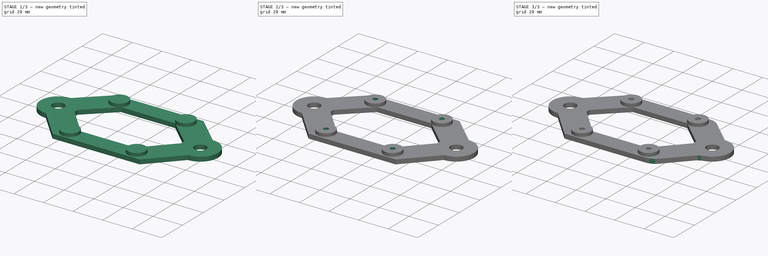
[diagram: build sequence overview — one tinted view per stage of 3, left to right]
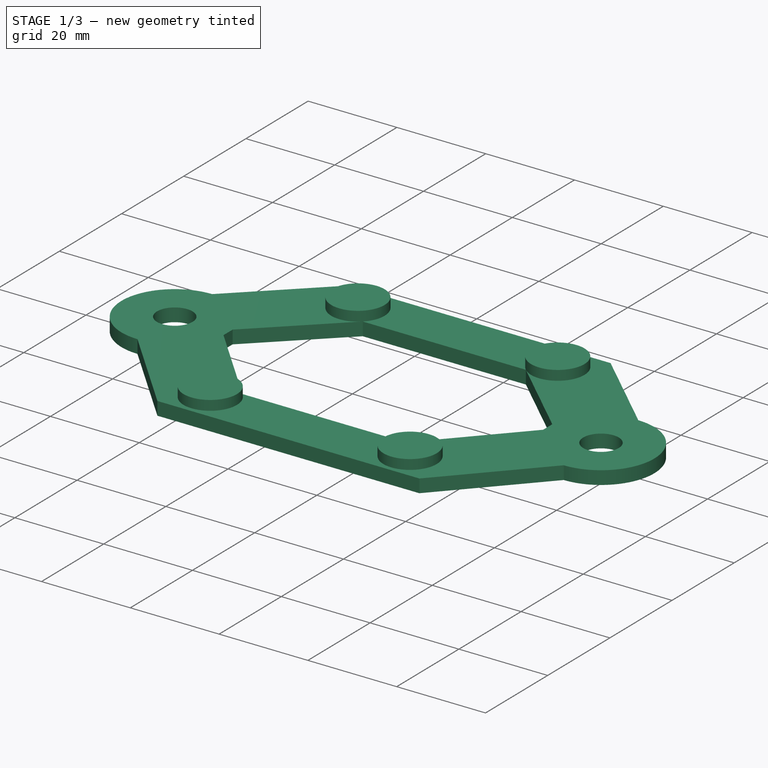
[diagram: stage 1 of 3 — iso view after this stage's code; geometry added in this stage tinted green]
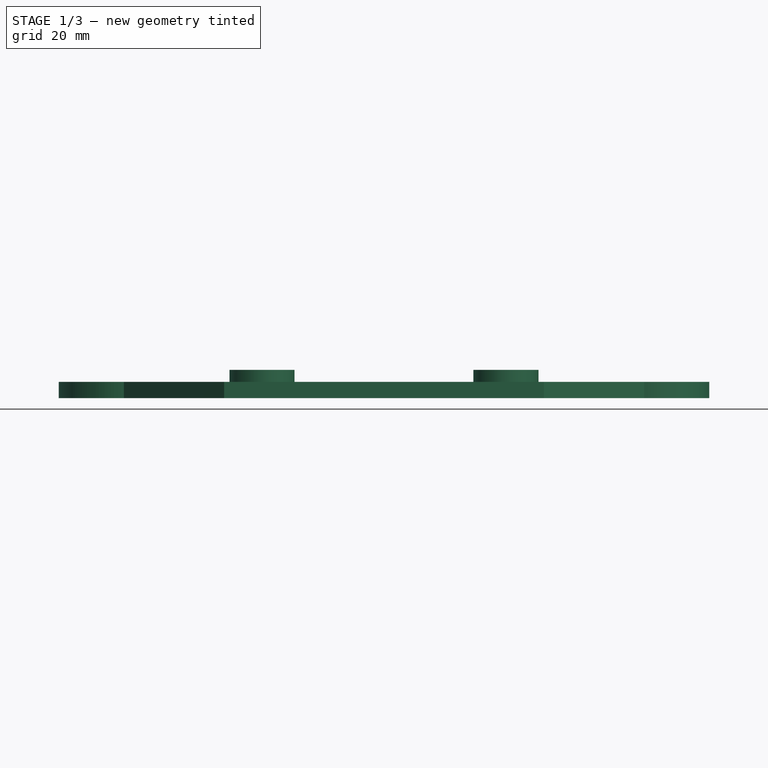
[diagram: stage 1 of 3 — front view after this stage's code; geometry added in this stage tinted green]
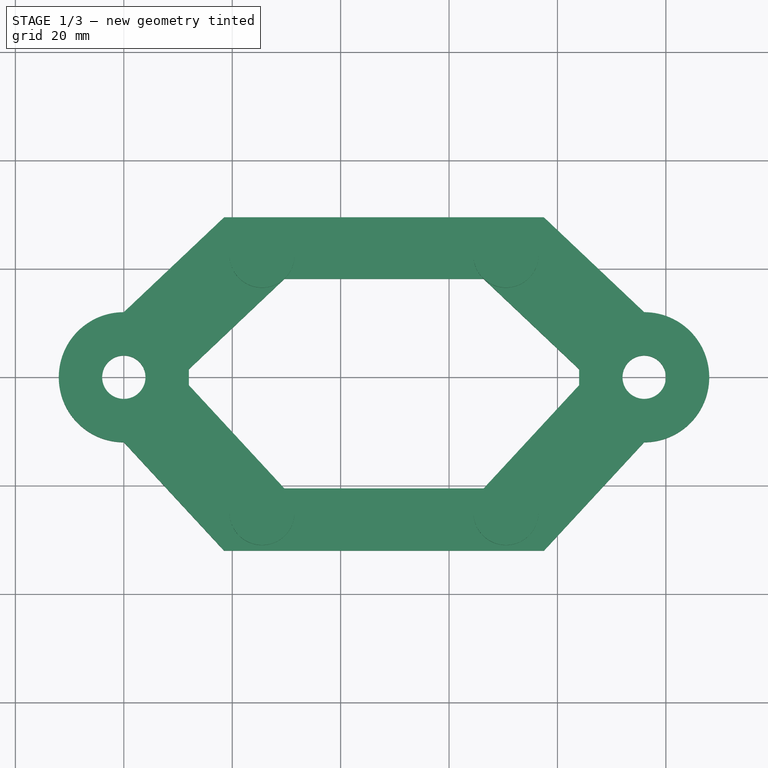
[diagram: stage 1 of 3 — top view after this stage's code; geometry added in this stage tinted green]
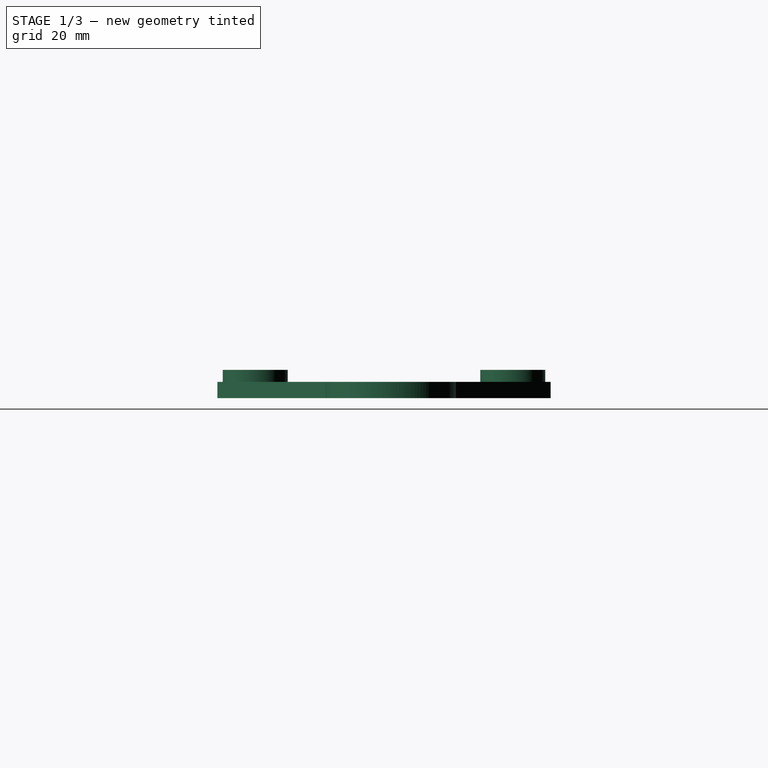
[diagram: stage 1 of 3 — right view after this stage's code; geometry added in this stage tinted green]
FCSTD DOCUMENT  (FreeCAD 0.19R24276 (Git))
Label: Pcb_encoder_holder_v1
License: All rights reserved
LicenseURL: http://en.wikipedia.org/wiki/All_rights_reserved
objects: Sketcher::SketchObject×4, PartDesign::Pad×2, PartDesign::Pocket×2, PartDesign::Fillet×2, PartDesign::Body×1
note: 17 computed .brp shape members not serialized (recipe doc carries the construction recipe); baked Part::Feature solids carry a one-line shape summary decoded from their .brp

FEATURE [Sketcher::SketchObject] Sketch
  FullyConstrained = true
  MapMode = 5
  Support = -> [XY_Plane]
  sketch-geometry (35):
    g0: Circle CenterX=7e-16 CenterY=0 CenterZ=0 NormalX=0 NormalY=0 NormalZ=1 AngleXU=0 Radius=4
    g1: Circle CenterX=96 CenterY=0 CenterZ=0 NormalX=0 NormalY=0 NormalZ=1 AngleXU=0 Radius=4
    g2: ArcOfCircle CenterX=7e-16 CenterY=0 CenterZ=0 NormalX=0 NormalY=0 NormalZ=1 AngleXU=0 Radius=12 StartAngle=1.5708 EndAngle=4.71239
    g3: ArcOfCircle CenterX=96 CenterY=0 CenterZ=0 NormalX=0 NormalY=0 NormalZ=1 AngleXU=0 Radius=12 StartAngle=4.71239 EndAngle=7.85398
    g4: Circle CenterX=25.5 CenterY=-25 CenterZ=0 NormalX=0 NormalY=0 NormalZ=1 AngleXU=0 Radius=1.6
    g5: Circle CenterX=70.5 CenterY=-25 CenterZ=0 NormalX=0 NormalY=0 NormalZ=1 AngleXU=0 Radius=1.6
    g6: LineSegment StartX=48 StartY=-25 StartZ=0 EndX=48 EndY=0 EndZ=0
    g7: Circle CenterX=25.5 CenterY=22.5 CenterZ=0 NormalX=0 NormalY=0 NormalZ=1 AngleXU=0 Radius=1.6
    g8: Circle CenterX=70.5 CenterY=22.5 CenterZ=0 NormalX=0 NormalY=0 NormalZ=1 AngleXU=0 Radius=1.6
    g9: LineSegment StartX=18.5 StartY=29.5 StartZ=0 EndX=77.5 EndY=29.5 EndZ=0
    g10: LineSegment StartX=77.5 StartY=29.5 StartZ=0 EndX=77.5 EndY=-32 EndZ=0
    g11: LineSegment StartX=77.5 StartY=-32 StartZ=0 EndX=18.5 EndY=-32 EndZ=0
    g12: LineSegment StartX=18.5 StartY=-32 StartZ=0 EndX=18.5 EndY=29.5 EndZ=0
    g13: LineSegment StartX=25.5 StartY=-1.25 StartZ=0 EndX=48 EndY=-1.25 EndZ=0
    g14: LineSegment StartX=18.5 StartY=29.5 StartZ=0 EndX=0 EndY=12 EndZ=0
    g15: LineSegment StartX=7e-16 StartY=-12 StartZ=0 EndX=18.5 EndY=-32 EndZ=0
    g16: LineSegment StartX=7e-16 StartY=0 StartZ=0 EndX=7e-16 EndY=-12 EndZ=0
    g17: LineSegment StartX=77.5 StartY=29.5 StartZ=0 EndX=96 EndY=12 EndZ=0
    g18: LineSegment StartX=96 StartY=-12 StartZ=0 EndX=77.5 EndY=-32 EndZ=0
    g19: Circle CenterX=48 CenterY=-1.25 CenterZ=0 NormalX=0 NormalY=0 NormalZ=1 AngleXU=0 Radius=25
    g20: LineSegment StartX=66.3768 StartY=-20.5227 StartZ=0 EndX=84 EndY=-1.4706 EndZ=0
    g21: LineSegment StartX=66.3768 StartY=18.1412 StartZ=0 EndX=84 EndY=1.4706 EndZ=0
    g22: Circle CenterX=70.5 CenterY=22.5 CenterZ=0 NormalX=0 NormalY=0 NormalZ=1 AngleXU=0 Radius=6
    g23: LineSegment StartX=70.5 StartY=22.5 StartZ=0 EndX=66.3768 EndY=18.1412 EndZ=0
    g24: LineSegment StartX=84 StartY=1.4706 StartZ=0 EndX=84 EndY=-1.4706 EndZ=0
    g25: LineSegment StartX=96 StartY=0 StartZ=0 EndX=84 EndY=0 EndZ=0
    g26: Circle CenterX=96 CenterY=0 CenterZ=0 NormalX=0 NormalY=0 NormalZ=1 AngleXU=0 Radius=12
    g27: LineSegment StartX=96 StartY=0 StartZ=0 EndX=84 EndY=0 EndZ=0
    g28: LineSegment StartX=29.6232 StartY=18.1412 StartZ=0 EndX=12 EndY=1.4706 EndZ=0
    g29: LineSegment StartX=29.6232 StartY=-20.5227 StartZ=0 EndX=12 EndY=-1.4706 EndZ=0
    g30: LineSegment StartX=12 StartY=1.4706 StartZ=0 EndX=12 EndY=-1.4706 EndZ=0
    g31: LineSegment StartX=66.3768 StartY=18.1412 StartZ=0 EndX=29.6232 EndY=18.1412 EndZ=0
    g32: LineSegment StartX=29.6232 StartY=-20.5227 StartZ=0 EndX=66.3768 EndY=-20.5227 EndZ=0
    g33: LineSegment StartX=48 StartY=-25 StartZ=0 EndX=48 EndY=-20.5227 EndZ=0
    g34: LineSegment StartX=7e-16 StartY=0 StartZ=0 EndX=12 EndY=0 EndZ=0
  constraints (92):
    c: Coincident(g0,g-1)
    c: PointOnObject(g1,g-1)
    c: Diameter(g0) = 8
    c: Equal(g0,g1)
    c: DistanceX(g0,g1) = 96
    c: Coincident(g2,g0)
    c: Diameter(g2) = 24
    c: Coincident(g3,g1)
    c: Equal(g3,g2)
    c: Horizontal(g4,g5)
    c: DistanceX(g4,g5) = 45
    c: Vertical(g6)
    c: Symmetric(g4,g5,g6)
    c: Symmetric(g0,g1,g6)
    c: Diameter(g4) = 3.2
    c: Equal(g4,g5)
    c: DistanceY(g5,g1) = 25
    c: Diameter(g7) = 3.2
    c: Equal(g7,g8)
    c: Horizontal(g7,g8)
    c: Vertical(g8,g5)
    c: Vertical(g7,g4)
    c: DistanceY(g5,g8) = 47.5
    c: Coincident(g9,g10)
    c: Coincident(g10,g11)
    c: Coincident(g11,g12)
    c: Coincident(g12,g9)
    c: Horizontal(g9)
    c: Horizontal(g11)
    c: Vertical(g10)
    c: Vertical(g12)
    c: Horizontal(g13)
    c: Symmetric(g4,g7,g13)
    c: PointOnObject(g13,g6)
    c: Symmetric(g9,g10,g13)
    c: DistanceY(g8,g9) = 7
    c: DistanceX(g5,g10) = 7
    c: Coincident(g14,g9)
    c: Coincident(g15,g11)
    c: Coincident(g16,g0)
    c: Coincident(g16,g15)
    c: Vertical(g16)
    c: Vertical(g14,g15)
    c: Coincident(g17,g9)
    c: Coincident(g18,g10)
    c: Vertical(g18,g1)
    c: Vertical(g1,g17)
    c: Coincident(g19,g13)
    c: Diameter(g19) = 50
    c: Coincident(g2,g14)
    c: Coincident(g2,g15)
    c: Coincident(g3,g18)
    c: Coincident(g3,g17)
    c: Parallel(g20,g18)
    c: Vertical(g21,g20)
    c: Vertical(g21,g20)
    c: Parallel(g21,g17)
    c: Coincident(g22,g8)
    c: Diameter(g22) = 12
    c: Coincident(g23,g8)
    c: PointOnObject(g23,g22)
    c: Coincident(g21,g23)
    c: Perpendicular(g23,g21)
    c: Coincident(g24,g21)
    c: Coincident(g24,g20)
    c: Coincident(g25,g1)
    c: Horizontal(g25)
    c: Symmetric(g21,g20,g25)
    c: Coincident(g26,g1)
    c: Diameter(g26) = 24
    c: Coincident(g27,g1)
    c: PointOnObject(g27,g26)
    c: Coincident(g25,g27)
    c: Coincident(g30,g28)
    c: Coincident(g30,g29)
    c: Coincident(g31,g21)
    c: Coincident(g31,g28)
    c: Horizontal(g31)
    c: Vertical(g28,g29)
    c: Horizontal(g20,g29)
    c: Coincident(g32,g29)
    c: Coincident(g32,g20)
    c: Coincident(g33,g6)
    c: Vertical(g33)
    c: Symmetric(g29,g20,g33)
    c: Coincident(g34,g0)
    c: Horizontal(g34)
    c: DistanceX(g34,g34) = 12
    c: Vertical(g29,g34)
    c: Vertical(g34,g28)
    c: Horizontal(g29,g20)
    c: Horizontal(g28,g21)
FEATURE [PartDesign::Pad] Pad
  Direction = (1,1,1)
  Length = 3
  Length2 = 100
  Profile = -> Sketch
  Type = 0
FEATURE [Sketcher::SketchObject] Sketch001
  FullyConstrained = true
  MapMode = 5
  Support = -> [XY_Plane]
  sketch-geometry (35):
    g0: Circle CenterX=-5.1e-15 CenterY=0 CenterZ=0 NormalX=0 NormalY=0 NormalZ=1 AngleXU=0 Radius=4
    g1: Circle CenterX=96 CenterY=0 CenterZ=0 NormalX=0 NormalY=0 NormalZ=1 AngleXU=0 Radius=4
    g2: ArcOfCircle CenterX=-5.1e-15 CenterY=0 CenterZ=0 NormalX=0 NormalY=0 NormalZ=1 AngleXU=0 Radius=12 StartAngle=1.5708 EndAngle=4.71239
    g3: ArcOfCircle CenterX=96 CenterY=0 CenterZ=0 NormalX=0 NormalY=0 NormalZ=1 AngleXU=0 Radius=12 StartAngle=4.71239 EndAngle=7.85398
    g4: Circle CenterX=25.5 CenterY=-25 CenterZ=0 NormalX=0 NormalY=0 NormalZ=1 AngleXU=0 Radius=4
    g5: Circle CenterX=70.5 CenterY=-25 CenterZ=0 NormalX=0 NormalY=0 NormalZ=1 AngleXU=0 Radius=4
    g6: LineSegment StartX=48 StartY=-25 StartZ=0 EndX=48 EndY=0 EndZ=0
    g7: Circle CenterX=25.5 CenterY=22.5 CenterZ=0 NormalX=0 NormalY=0 NormalZ=1 AngleXU=0 Radius=4
    g8: Circle CenterX=70.5 CenterY=22.5 CenterZ=0 NormalX=0 NormalY=0 NormalZ=1 AngleXU=0 Radius=4
    g9: LineSegment StartX=18.5 StartY=29.5 StartZ=0 EndX=77.5 EndY=29.5 EndZ=0
    g10: LineSegment StartX=77.5 StartY=29.5 StartZ=0 EndX=77.5 EndY=-32 EndZ=0
    g11: LineSegment StartX=77.5 StartY=-32 StartZ=0 EndX=18.5 EndY=-32 EndZ=0
    g12: LineSegment StartX=18.5 StartY=-32 StartZ=0 EndX=18.5 EndY=29.5 EndZ=0
    g13: LineSegment StartX=25.5 StartY=-1.25 StartZ=0 EndX=48 EndY=-1.25 EndZ=0
    g14: LineSegment StartX=18.5 StartY=29.5 StartZ=0 EndX=-3.6e-15 EndY=12 EndZ=0
    g15: LineSegment StartX=-5.1e-15 StartY=-12 StartZ=0 EndX=18.5 EndY=-32 EndZ=0
    g16: LineSegment StartX=-5.1e-15 StartY=0 StartZ=0 EndX=-5.1e-15 EndY=-12 EndZ=0
    g17: LineSegment StartX=77.5 StartY=29.5 StartZ=0 EndX=96 EndY=12 EndZ=0
    g18: LineSegment StartX=96 StartY=-12 StartZ=0 EndX=77.5 EndY=-32 EndZ=0
    g19: Circle CenterX=48 CenterY=-1.25 CenterZ=0 NormalX=0 NormalY=0 NormalZ=1 AngleXU=0 Radius=25
    g20: LineSegment StartX=66.3768 StartY=-20.5227 StartZ=0 EndX=84 EndY=-1.4706 EndZ=0
    g21: LineSegment StartX=66.3768 StartY=18.1412 StartZ=0 EndX=84 EndY=1.4706 EndZ=0
    g22: Circle CenterX=70.5 CenterY=22.5 CenterZ=0 NormalX=0 NormalY=0 NormalZ=1 AngleXU=0 Radius=6
    g23: LineSegment StartX=70.5 StartY=22.5 StartZ=0 EndX=66.3768 EndY=18.1412 EndZ=0
    g24: LineSegment StartX=84 StartY=1.4706 StartZ=0 EndX=84 EndY=-1.4706 EndZ=0
    g25: LineSegment StartX=96 StartY=0 StartZ=0 EndX=84 EndY=0 EndZ=0
    g26: Circle CenterX=96 CenterY=0 CenterZ=0 NormalX=0 NormalY=0 NormalZ=1 AngleXU=0 Radius=12
    g27: LineSegment StartX=96 StartY=0 StartZ=0 EndX=84 EndY=0 EndZ=0
    g28: LineSegment StartX=29.6232 StartY=18.1412 StartZ=0 EndX=12 EndY=1.4706 EndZ=0
    g29: LineSegment StartX=29.6232 StartY=-20.5227 StartZ=0 EndX=12 EndY=-1.4706 EndZ=0
    g30: LineSegment StartX=12 StartY=1.4706 StartZ=0 EndX=12 EndY=-1.4706 EndZ=0
    g31: LineSegment StartX=66.3768 StartY=18.1412 StartZ=0 EndX=29.6232 EndY=18.1412 EndZ=0
    g32: LineSegment StartX=29.6232 StartY=-20.5227 StartZ=0 EndX=66.3768 EndY=-20.5227 EndZ=0
    g33: LineSegment StartX=48 StartY=-25 StartZ=0 EndX=48 EndY=-20.5227 EndZ=0
    g34: LineSegment StartX=-5.1e-15 StartY=0 StartZ=0 EndX=12 EndY=0 EndZ=0
  constraints (92):
    c: Coincident(g0,g-1)
    c: PointOnObject(g1,g-1)
    c: Diameter(g0) = 8
    c: Equal(g0,g1)
    c: DistanceX(g0,g1) = 96
    c: Coincident(g2,g0)
    c: Diameter(g2) = 24
    c: Coincident(g3,g1)
    c: Equal(g3,g2)
    c: Horizontal(g4,g5)
    c: DistanceX(g4,g5) = 45
    c: Vertical(g6)
    c: Symmetric(g4,g5,g6)
    c: Symmetric(g0,g1,g6)
    c: Diameter(g4) = 8
    c: Equal(g4,g5)
    c: DistanceY(g5,g1) = 25
    c: Diameter(g7) = 8
    c: Equal(g7,g8)
    c: Horizontal(g7,g8)
    c: Vertical(g8,g5)
    c: Vertical(g7,g4)
    c: DistanceY(g5,g8) = 47.5
    c: Coincident(g9,g10)
    c: Coincident(g10,g11)
    c: Coincident(g11,g12)
    c: Coincident(g12,g9)
    c: Horizontal(g9)
    c: Horizontal(g11)
    c: Vertical(g10)
    c: Vertical(g12)
    c: Horizontal(g13)
    c: Symmetric(g4,g7,g13)
    c: PointOnObject(g13,g6)
    c: Symmetric(g9,g10,g13)
    c: DistanceY(g8,g9) = 7
    c: DistanceX(g5,g10) = 7
    c: Coincident(g14,g9)
    c: Coincident(g15,g11)
    c: Coincident(g16,g0)
    c: Coincident(g16,g15)
    c: Vertical(g16)
    c: Vertical(g14,g15)
    c: Coincident(g17,g9)
    c: Coincident(g18,g10)
    c: Vertical(g18,g1)
    c: Vertical(g1,g17)
    c: Coincident(g19,g13)
    c: Diameter(g19) = 50
    c: Coincident(g2,g14)
    c: Coincident(g2,g15)
    c: Coincident(g3,g18)
    c: Coincident(g3,g17)
    c: Parallel(g20,g18)
    c: Vertical(g21,g20)
    c: Vertical(g21,g20)
    c: Parallel(g21,g17)
    c: Coincident(g22,g8)
    c: Diameter(g22) = 12
    c: Coincident(g23,g8)
    c: PointOnObject(g23,g22)
    c: Coincident(g21,g23)
    c: Perpendicular(g23,g21)
    c: Coincident(g24,g21)
    c: Coincident(g24,g20)
    c: Coincident(g25,g1)
    c: Horizontal(g25)
    c: Symmetric(g21,g20,g25)
    c: Coincident(g26,g1)
    c: Diameter(g26) = 24
    c: Coincident(g27,g1)
    c: PointOnObject(g27,g26)
    c: Coincident(g25,g27)
    c: Coincident(g30,g28)
    c: Coincident(g30,g29)
    c: Coincident(g31,g21)
    c: Coincident(g31,g28)
    c: Horizontal(g31)
    c: Vertical(g28,g29)
    c: Horizontal(g20,g29)
    c: Coincident(g32,g29)
    c: Coincident(g32,g20)
    c: Coincident(g33,g6)
    c: Vertical(g33)
    c: Symmetric(g29,g20,g33)
    c: Coincident(g34,g0)
    c: Horizontal(g34)
    c: DistanceX(g34,g34) = 12
    c: Vertical(g29,g34)
    c: Vertical(g34,g28)
    c: Horizontal(g29,g20)
    c: Horizontal(g28,g21)
FEATURE [Sketcher::SketchObject] Sketch002
  AttachmentOffset = pos=(0,0,2.2) rot=(0,0,1;0rad)
  FullyConstrained = true
  MapMode = 5
  Placement = pos=(0,0,2.2) rot=(0,0,1;0rad)
  Support = -> [XY_Plane]
  sketch-geometry (35):
    g0: Circle CenterX=-6.6e-15 CenterY=0 CenterZ=0 NormalX=0 NormalY=0 NormalZ=1 AngleXU=0 Radius=4
    g1: Circle CenterX=96 CenterY=0 CenterZ=0 NormalX=0 NormalY=0 NormalZ=1 AngleXU=0 Radius=4
    g2: ArcOfCircle CenterX=-6.6e-15 CenterY=0 CenterZ=0 NormalX=0 NormalY=0 NormalZ=1 AngleXU=0 Radius=12 StartAngle=1.5708 EndAngle=4.71239
    g3: ArcOfCircle CenterX=96 CenterY=0 CenterZ=0 NormalX=0 NormalY=0 NormalZ=1 AngleXU=0 Radius=12 StartAngle=4.71239 EndAngle=7.85398
    g4: Circle CenterX=25.5 CenterY=-25 CenterZ=0 NormalX=0 NormalY=0 NormalZ=1 AngleXU=0 Radius=6
    g5: Circle CenterX=70.5 CenterY=-25 CenterZ=0 NormalX=0 NormalY=0 NormalZ=1 AngleXU=0 Radius=6
    g6: LineSegment StartX=48 StartY=-25 StartZ=0 EndX=48 EndY=0 EndZ=0
    g7: Circle CenterX=25.5 CenterY=22.5 CenterZ=0 NormalX=0 NormalY=0 NormalZ=1 AngleXU=0 Radius=6
    g8: Circle CenterX=70.5 CenterY=22.5 CenterZ=0 NormalX=0 NormalY=0 NormalZ=1 AngleXU=0 Radius=6
    g9: LineSegment StartX=18.5 StartY=29.5 StartZ=0 EndX=77.5 EndY=29.5 EndZ=0
    g10: LineSegment StartX=77.5 StartY=29.5 StartZ=0 EndX=77.5 EndY=-32 EndZ=0
    g11: LineSegment StartX=77.5 StartY=-32 StartZ=0 EndX=18.5 EndY=-32 EndZ=0
    g12: LineSegment StartX=18.5 StartY=-32 StartZ=0 EndX=18.5 EndY=29.5 EndZ=0
    g13: LineSegment StartX=25.5 StartY=-1.25 StartZ=0 EndX=48 EndY=-1.25 EndZ=0
    g14: LineSegment StartX=18.5 StartY=29.5 StartZ=0 EndX=-7.1e-15 EndY=12 EndZ=0
    g15: LineSegment StartX=-6.6e-15 StartY=-12 StartZ=0 EndX=18.5 EndY=-32 EndZ=0
    g16: LineSegment StartX=-6.6e-15 StartY=0 StartZ=0 EndX=-6.6e-15 EndY=-12 EndZ=0
    g17: LineSegment StartX=77.5 StartY=29.5 StartZ=0 EndX=96 EndY=12 EndZ=0
    g18: LineSegment StartX=96 StartY=-12 StartZ=0 EndX=77.5 EndY=-32 EndZ=0
    g19: Circle CenterX=48 CenterY=-1.25 CenterZ=0 NormalX=0 NormalY=0 NormalZ=1 AngleXU=0 Radius=25
    g20: LineSegment StartX=66.3768 StartY=-20.5227 StartZ=0 EndX=84 EndY=-1.4706 EndZ=0
    g21: LineSegment StartX=66.3768 StartY=18.1412 StartZ=0 EndX=84 EndY=1.4706 EndZ=0
    g22: Circle CenterX=70.5 CenterY=22.5 CenterZ=0 NormalX=0 NormalY=0 NormalZ=1 AngleXU=0 Radius=6
    g23: LineSegment StartX=70.5 StartY=22.5 StartZ=0 EndX=66.3768 EndY=18.1412 EndZ=0
    g24: LineSegment StartX=84 StartY=1.4706 StartZ=0 EndX=84 EndY=-1.4706 EndZ=0
    g25: LineSegment StartX=96 StartY=0 StartZ=0 EndX=84 EndY=0 EndZ=0
    g26: Circle CenterX=96 CenterY=0 CenterZ=0 NormalX=0 NormalY=0 NormalZ=1 AngleXU=0 Radius=12
    g27: LineSegment StartX=96 StartY=0 StartZ=0 EndX=84 EndY=0 EndZ=0
    g28: LineSegment StartX=29.6232 StartY=18.1412 StartZ=0 EndX=12 EndY=1.4706 EndZ=0
    g29: LineSegment StartX=29.6232 StartY=-20.5227 StartZ=0 EndX=12 EndY=-1.4706 EndZ=0
    g30: LineSegment StartX=12 StartY=1.4706 StartZ=0 EndX=12 EndY=-1.4706 EndZ=0
    g31: LineSegment StartX=66.3768 StartY=18.1412 StartZ=0 EndX=29.6232 EndY=18.1412 EndZ=0
    g32: LineSegment StartX=29.6232 StartY=-20.5227 StartZ=0 EndX=66.3768 EndY=-20.5227 EndZ=0
    g33: LineSegment StartX=48 StartY=-25 StartZ=0 EndX=48 EndY=-20.5227 EndZ=0
    g34: LineSegment StartX=-6.6e-15 StartY=0 StartZ=0 EndX=12 EndY=0 EndZ=0
  constraints (92):
    c: Coincident(g0,g-1)
    c: PointOnObject(g1,g-1)
    c: Diameter(g0) = 8
    c: Equal(g0,g1)
    c: DistanceX(g0,g1) = 96
    c: Coincident(g2,g0)
    c: Diameter(g2) = 24
    c: Coincident(g3,g1)
    c: Equal(g3,g2)
    c: Horizontal(g4,g5)
    c: DistanceX(g4,g5) = 45
    c: Vertical(g6)
    c: Symmetric(g4,g5,g6)
    c: Symmetric(g0,g1,g6)
    c: Equal(g4,g5)
    c: DistanceY(g5,g1) = 25
    c: Diameter(g7) = 12
    c: Equal(g7,g8)
    c: Horizontal(g7,g8)
    c: Vertical(g8,g5)
    c: Vertical(g7,g4)
    c: DistanceY(g5,g8) = 47.5
    c: Coincident(g9,g10)
    c: Coincident(g10,g11)
    c: Coincident(g11,g12)
    c: Coincident(g12,g9)
    c: Horizontal(g9)
    c: Horizontal(g11)
    c: Vertical(g10)
    c: Vertical(g12)
    c: Horizontal(g13)
    c: Symmetric(g4,g7,g13)
    c: PointOnObject(g13,g6)
    c: Symmetric(g9,g10,g13)
    c: DistanceY(g8,g9) = 7
    c: DistanceX(g5,g10) = 7
    c: Coincident(g14,g9)
    c: Coincident(g15,g11)
    c: Coincident(g16,g0)
    c: Coincident(g16,g15)
    c: Vertical(g16)
    c: Vertical(g14,g15)
    c: Coincident(g17,g9)
    c: Coincident(g18,g10)
    c: Vertical(g18,g1)
    c: Vertical(g1,g17)
    c: Coincident(g19,g13)
    c: Diameter(g19) = 50
    c: Coincident(g2,g14)
    c: Coincident(g2,g15)
    c: Coincident(g3,g18)
    c: Coincident(g3,g17)
    c: Parallel(g20,g18)
    c: Vertical(g21,g20)
    c: Vertical(g21,g20)
    c: Parallel(g21,g17)
    c: Coincident(g22,g8)
    c: Diameter(g22) = 12
    c: Coincident(g23,g8)
    c: PointOnObject(g23,g22)
    c: Coincident(g21,g23)
    c: Perpendicular(g23,g21)
    c: Coincident(g24,g21)
    c: Coincident(g24,g20)
    c: Coincident(g25,g1)
    c: Horizontal(g25)
    c: Symmetric(g21,g20,g25)
    c: Coincident(g26,g1)
    c: Diameter(g26) = 24
    c: Coincident(g27,g1)
    c: PointOnObject(g27,g26)
    c: Coincident(g25,g27)
    c: Coincident(g30,g28)
    c: Coincident(g30,g29)
    c: Coincident(g31,g21)
    c: Coincident(g31,g28)
    c: Horizontal(g31)
    c: Vertical(g28,g29)
    c: Horizontal(g20,g29)
    c: Coincident(g32,g29)
    c: Coincident(g32,g20)
    c: Coincident(g33,g6)
    c: Vertical(g33)
    c: Symmetric(g29,g20,g33)
    c: Coincident(g34,g0)
    c: Horizontal(g34)
    c: DistanceX(g34,g34) = 12
    c: Vertical(g29,g34)
    c: Vertical(g34,g28)
    c: Horizontal(g29,g20)
    c: Horizontal(g28,g21)
    c: Equal(g4,g7)
FEATURE [PartDesign::Pad] Pad001
  BaseFeature = -> Pad
  Direction = (1,1,1)
  Length = 3
  Length2 = 100
  Profile = -> Sketch002
  Type = 0
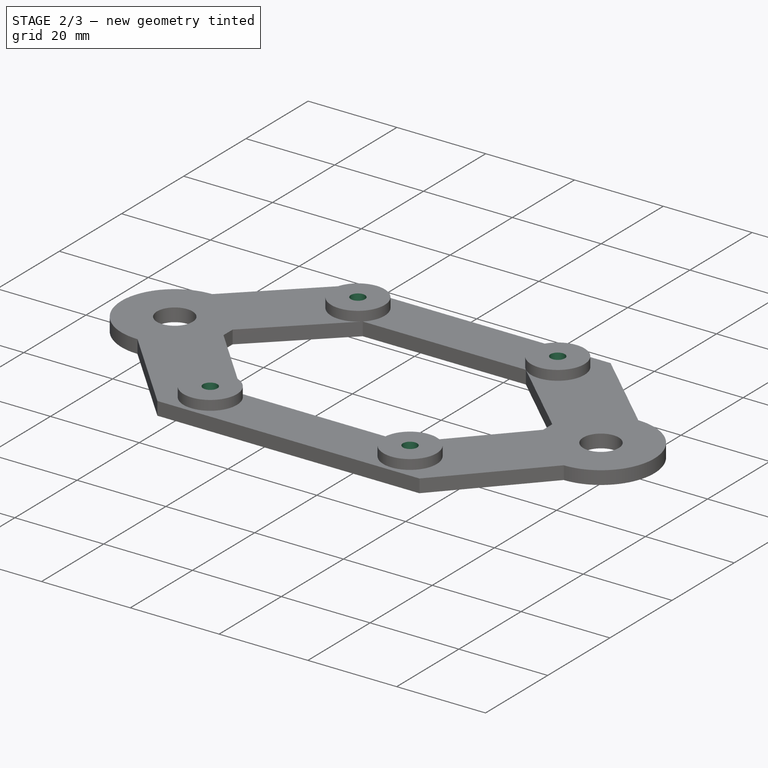
[diagram: stage 2 of 3 — iso view after this stage's code; geometry added in this stage tinted green]
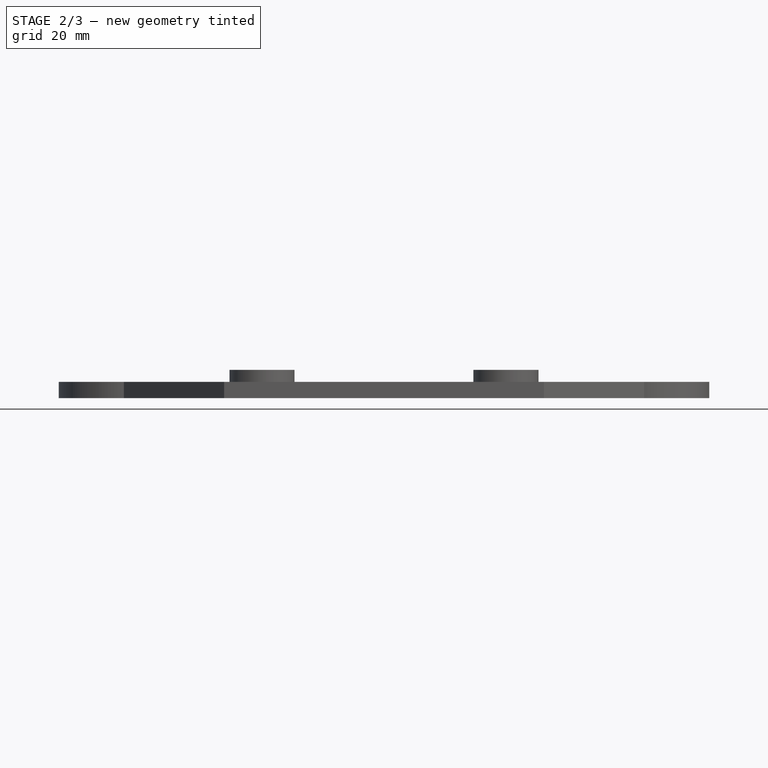
[diagram: stage 2 of 3 — front view after this stage's code; geometry added in this stage tinted green]
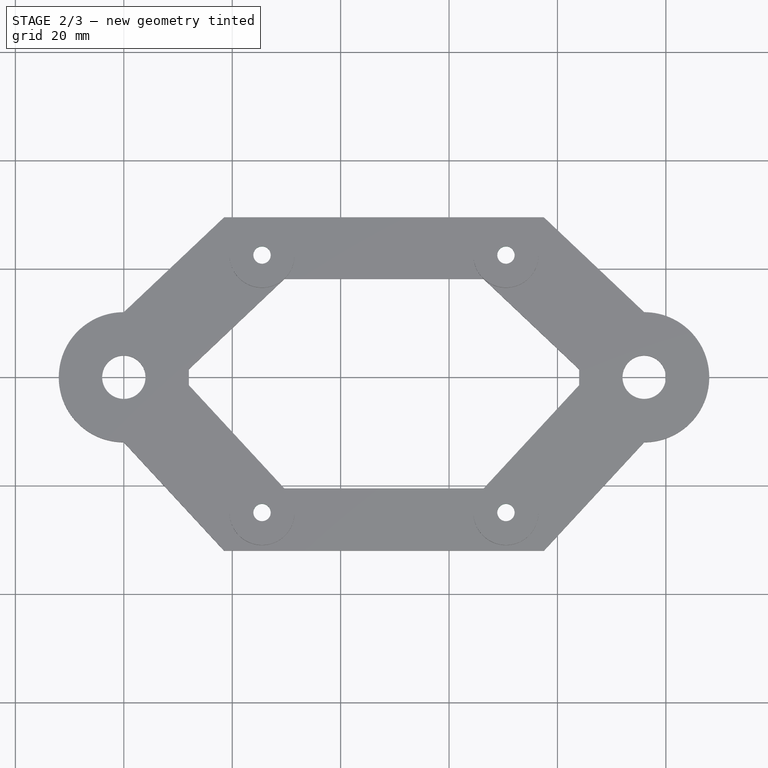
[diagram: stage 2 of 3 — top view after this stage's code; geometry added in this stage tinted green]
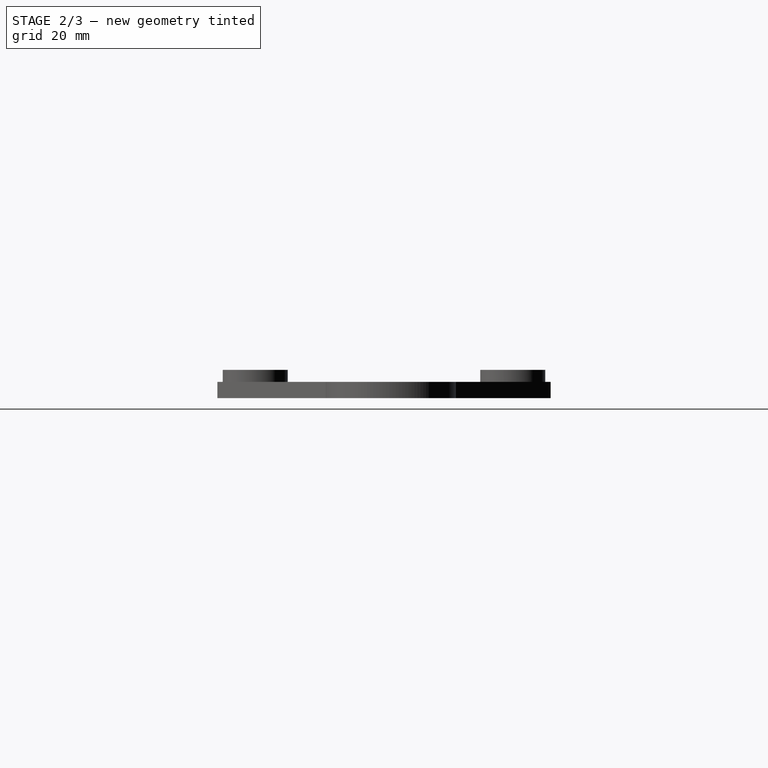
[diagram: stage 2 of 3 — right view after this stage's code; geometry added in this stage tinted green]
FEATURE [PartDesign::Pocket] Pocket
  BaseFeature = -> Pad001
  Length = 3
  Length2 = 100
  Profile = -> Sketch001
  Reversed = true
  Type = 0
FEATURE [Sketcher::SketchObject] Sketch003
  FullyConstrained = true
  MapMode = 5
  Support = -> [XY_Plane]
  sketch-geometry (35):
    g0: Circle CenterX=-7.4e-15 CenterY=0 CenterZ=0 NormalX=0 NormalY=0 NormalZ=1 AngleXU=0 Radius=4
    g1: Circle CenterX=96 CenterY=0 CenterZ=0 NormalX=0 NormalY=0 NormalZ=1 AngleXU=0 Radius=4
    g2: ArcOfCircle CenterX=-7.4e-15 CenterY=0 CenterZ=0 NormalX=0 NormalY=0 NormalZ=1 AngleXU=0 Radius=12 StartAngle=1.5708 EndAngle=4.71239
    g3: ArcOfCircle CenterX=96 CenterY=0 CenterZ=0 NormalX=0 NormalY=0 NormalZ=1 AngleXU=0 Radius=12 StartAngle=4.71239 EndAngle=7.85398
    g4: Circle CenterX=25.5 CenterY=-25 CenterZ=0 NormalX=0 NormalY=0 NormalZ=1 AngleXU=0 Radius=1.6
    g5: Circle CenterX=70.5 CenterY=-25 CenterZ=0 NormalX=0 NormalY=0 NormalZ=1 AngleXU=0 Radius=1.6
    g6: LineSegment StartX=48 StartY=-25 StartZ=0 EndX=48 EndY=0 EndZ=0
    g7: Circle CenterX=25.5 CenterY=22.5 CenterZ=0 NormalX=0 NormalY=0 NormalZ=1 AngleXU=0 Radius=1.6
    g8: Circle CenterX=70.5 CenterY=22.5 CenterZ=0 NormalX=0 NormalY=0 NormalZ=1 AngleXU=0 Radius=1.6
    g9: LineSegment StartX=18.5 StartY=29.5 StartZ=0 EndX=77.5 EndY=29.5 EndZ=0
    g10: LineSegment StartX=77.5 StartY=29.5 StartZ=0 EndX=77.5 EndY=-32 EndZ=0
    g11: LineSegment StartX=77.5 StartY=-32 StartZ=0 EndX=18.5 EndY=-32 EndZ=0
    g12: LineSegment StartX=18.5 StartY=-32 StartZ=0 EndX=18.5 EndY=29.5 EndZ=0
    g13: LineSegment StartX=25.5 StartY=-1.25 StartZ=0 EndX=48 EndY=-1.25 EndZ=0
    g14: LineSegment StartX=18.5 StartY=29.5 StartZ=0 EndX=-7.1e-15 EndY=12 EndZ=0
    g15: LineSegment StartX=-7.4e-15 StartY=-12 StartZ=0 EndX=18.5 EndY=-32 EndZ=0
    g16: LineSegment StartX=-7.4e-15 StartY=0 StartZ=0 EndX=-7.4e-15 EndY=-12 EndZ=0
    g17: LineSegment StartX=77.5 StartY=29.5 StartZ=0 EndX=96 EndY=12 EndZ=0
    g18: LineSegment StartX=96 StartY=-12 StartZ=0 EndX=77.5 EndY=-32 EndZ=0
    g19: Circle CenterX=48 CenterY=-1.25 CenterZ=0 NormalX=0 NormalY=0 NormalZ=1 AngleXU=0 Radius=25
    g20: LineSegment StartX=66.3768 StartY=-20.5227 StartZ=0 EndX=84 EndY=-1.4706 EndZ=0
    g21: LineSegment StartX=66.3768 StartY=18.1412 StartZ=0 EndX=84 EndY=1.4706 EndZ=0
    g22: Circle CenterX=70.5 CenterY=22.5 CenterZ=0 NormalX=0 NormalY=0 NormalZ=1 AngleXU=0 Radius=6
    g23: LineSegment StartX=70.5 StartY=22.5 StartZ=0 EndX=66.3768 EndY=18.1412 EndZ=0
    g24: LineSegment StartX=84 StartY=1.4706 StartZ=0 EndX=84 EndY=-1.4706 EndZ=0
    g25: LineSegment StartX=96 StartY=0 StartZ=0 EndX=84 EndY=0 EndZ=0
    g26: Circle CenterX=96 CenterY=0 CenterZ=0 NormalX=0 NormalY=0 NormalZ=1 AngleXU=0 Radius=12
    g27: LineSegment StartX=96 StartY=0 StartZ=0 EndX=84 EndY=0 EndZ=0
    g28: LineSegment StartX=29.6232 StartY=18.1412 StartZ=0 EndX=12 EndY=1.4706 EndZ=0
    g29: LineSegment StartX=29.6232 StartY=-20.5227 StartZ=0 EndX=12 EndY=-1.4706 EndZ=0
    g30: LineSegment StartX=12 StartY=1.4706 StartZ=0 EndX=12 EndY=-1.4706 EndZ=0
    g31: LineSegment StartX=66.3768 StartY=18.1412 StartZ=0 EndX=29.6232 EndY=18.1412 EndZ=0
    g32: LineSegment StartX=29.6232 StartY=-20.5227 StartZ=0 EndX=66.3768 EndY=-20.5227 EndZ=0
    g33: LineSegment StartX=48 StartY=-25 StartZ=0 EndX=48 EndY=-20.5227 EndZ=0
    g34: LineSegment StartX=-7.4e-15 StartY=0 StartZ=0 EndX=12 EndY=0 EndZ=0
  constraints (92):
    c: Coincident(g0,g-1)
    c: PointOnObject(g1,g-1)
    c: Diameter(g0) = 8
    c: Equal(g0,g1)
    c: DistanceX(g0,g1) = 96
    c: Coincident(g2,g0)
    c: Diameter(g2) = 24
    c: Coincident(g3,g1)
    c: Equal(g3,g2)
    c: Horizontal(g4,g5)
    c: DistanceX(g4,g5) = 45
    c: Vertical(g6)
    c: Symmetric(g4,g5,g6)
    c: Symmetric(g0,g1,g6)
    c: Diameter(g4) = 3.2
    c: Equal(g4,g5)
    c: DistanceY(g5,g1) = 25
    c: Diameter(g7) = 3.2
    c: Equal(g7,g8)
    c: Horizontal(g7,g8)
    c: Vertical(g8,g5)
    c: Vertical(g7,g4)
    c: DistanceY(g5,g8) = 47.5
    c: Coincident(g9,g10)
    c: Coincident(g10,g11)
    c: Coincident(g11,g12)
    c: Coincident(g12,g9)
    c: Horizontal(g9)
    c: Horizontal(g11)
    c: Vertical(g10)
    c: Vertical(g12)
    c: Horizontal(g13)
    c: Symmetric(g4,g7,g13)
    c: PointOnObject(g13,g6)
    c: Symmetric(g9,g10,g13)
    c: DistanceY(g8,g9) = 7
    c: DistanceX(g5,g10) = 7
    c: Coincident(g14,g9)
    c: Coincident(g15,g11)
    c: Coincident(g16,g0)
    c: Coincident(g16,g15)
    c: Vertical(g16)
    c: Vertical(g14,g15)
    c: Coincident(g17,g9)
    c: Coincident(g18,g10)
    c: Vertical(g18,g1)
    c: Vertical(g1,g17)
    c: Coincident(g19,g13)
    c: Diameter(g19) = 50
    c: Coincident(g2,g14)
    c: Coincident(g2,g15)
    c: Coincident(g3,g18)
    c: Coincident(g3,g17)
    c: Parallel(g20,g18)
    c: Vertical(g21,g20)
    c: Vertical(g21,g20)
    c: Parallel(g21,g17)
    c: Coincident(g22,g8)
    c: Diameter(g22) = 12
    c: Coincident(g23,g8)
    c: PointOnObject(g23,g22)
    c: Coincident(g21,g23)
    c: Perpendicular(g23,g21)
    c: Coincident(g24,g21)
    c: Coincident(g24,g20)
    c: Coincident(g25,g1)
    c: Horizontal(g25)
    c: Symmetric(g21,g20,g25)
    c: Coincident(g26,g1)
    c: Diameter(g26) = 24
    c: Coincident(g27,g1)
    c: PointOnObject(g27,g26)
    c: Coincident(g25,g27)
    c: Coincident(g30,g28)
    c: Coincident(g30,g29)
    c: Coincident(g31,g21)
    c: Coincident(g31,g28)
    c: Horizontal(g31)
    c: Vertical(g28,g29)
    c: Horizontal(g20,g29)
    c: Coincident(g32,g29)
    c: Coincident(g32,g20)
    c: Coincident(g33,g6)
    c: Vertical(g33)
    c: Symmetric(g29,g20,g33)
    c: Coincident(g34,g0)
    c: Horizontal(g34)
    c: DistanceX(g34,g34) = 12
    c: Vertical(g29,g34)
    c: Vertical(g34,g28)
    c: Horizontal(g29,g20)
    c: Horizontal(g28,g21)
FEATURE [PartDesign::Pocket] Pocket001
  BaseFeature = -> Pocket
  Length = 5
  Length2 = 100
  Profile = -> Sketch003
  Reversed = true
  Type = 1
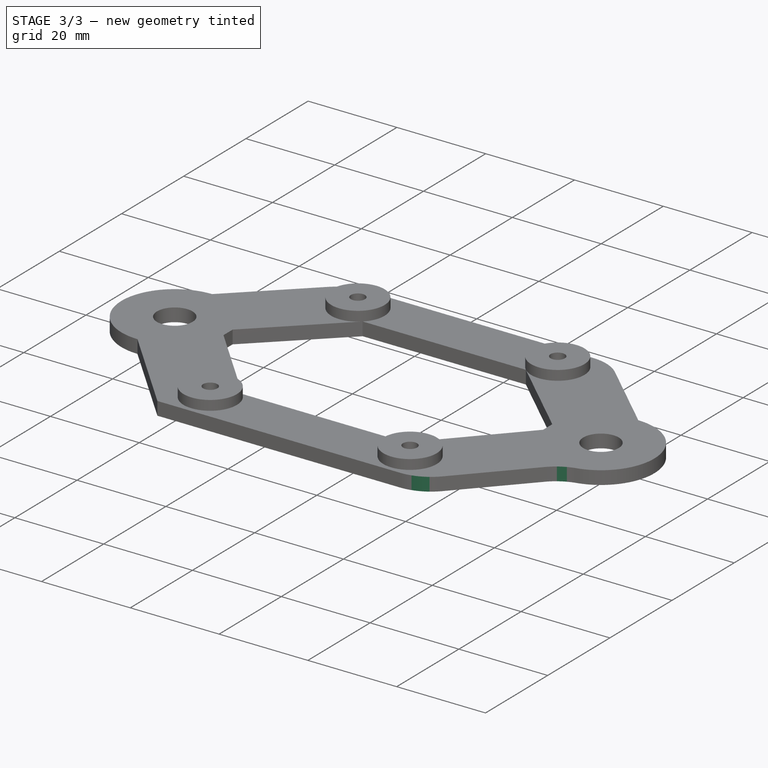
[diagram: stage 3 of 3 — iso view after this stage's code; geometry added in this stage tinted green]
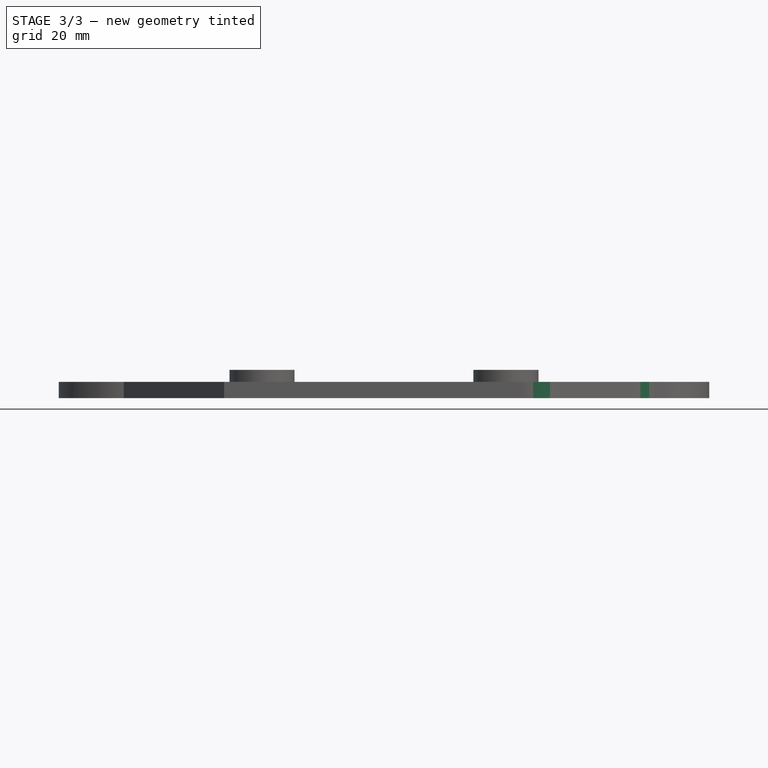
[diagram: stage 3 of 3 — front view after this stage's code; geometry added in this stage tinted green]
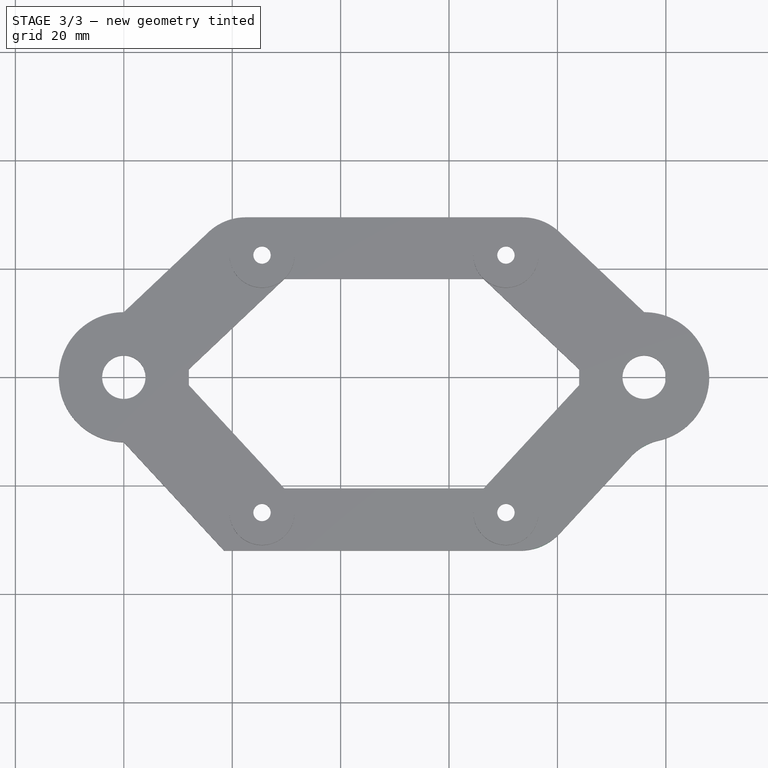
[diagram: stage 3 of 3 — top view after this stage's code; geometry added in this stage tinted green]
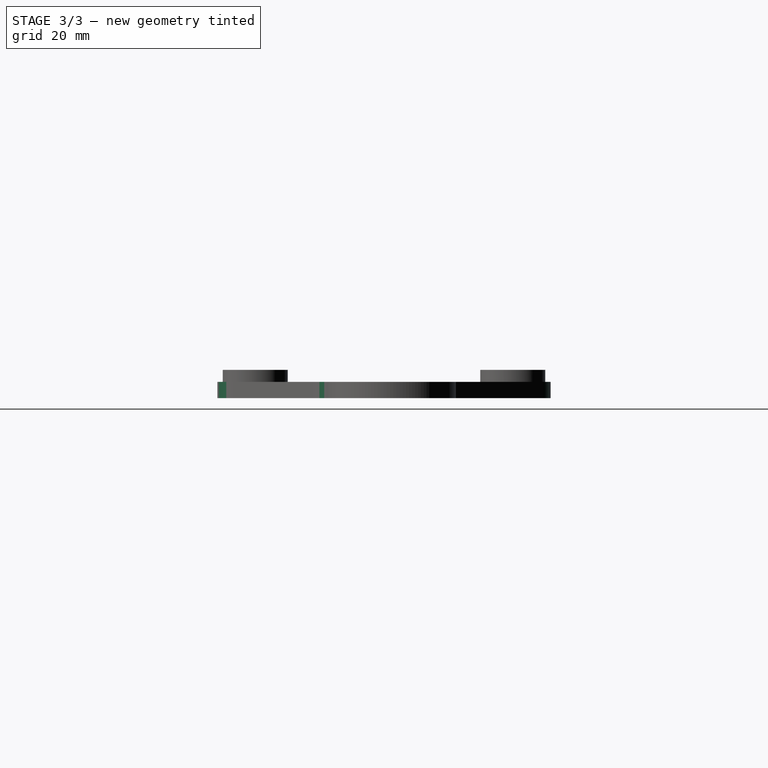
[diagram: stage 3 of 3 — right view after this stage's code; geometry added in this stage tinted green]
FEATURE [PartDesign::Fillet] Fillet
  Base = -> Pocket001 [Edge5,Edge1]
  BaseFeature = -> Pocket001
  Radius = 10
  SupportTransform = false
FEATURE [PartDesign::Fillet] Fillet001
  Base = -> Fillet [Edge58,Edge60]
  BaseFeature = -> Fillet
  Radius = 10
  SupportTransform = false
FEATURE [PartDesign::Body] Body
  Group = -> [Sketch,Pad,Sketch002,Pad001,Sketch001,Pocket,Sketch003,Pocket001,Fillet,Fillet001]
  Origin = -> Origin
  Tip = -> Fillet001
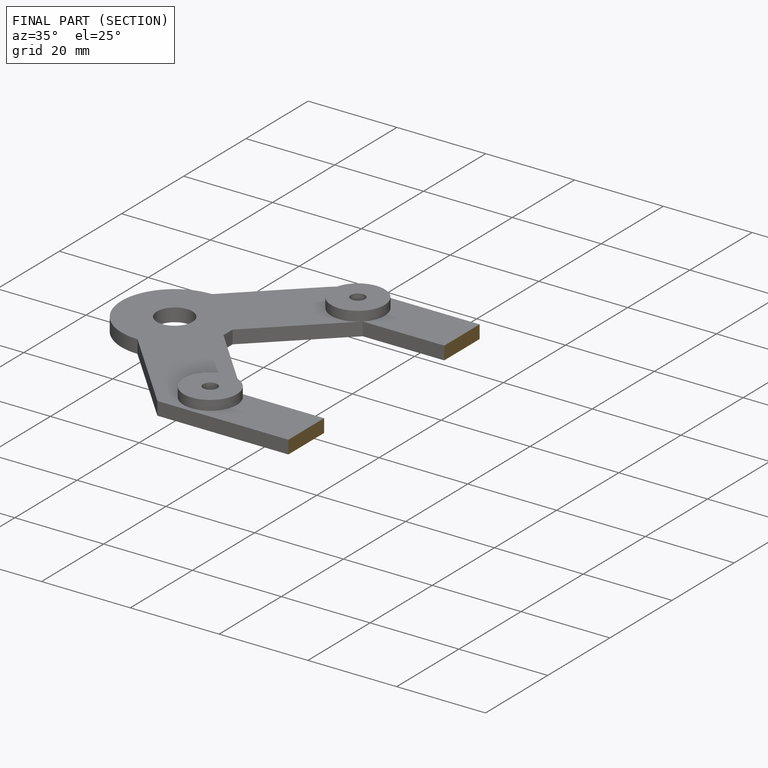
[diagram: finished part — half-section view (interior)]
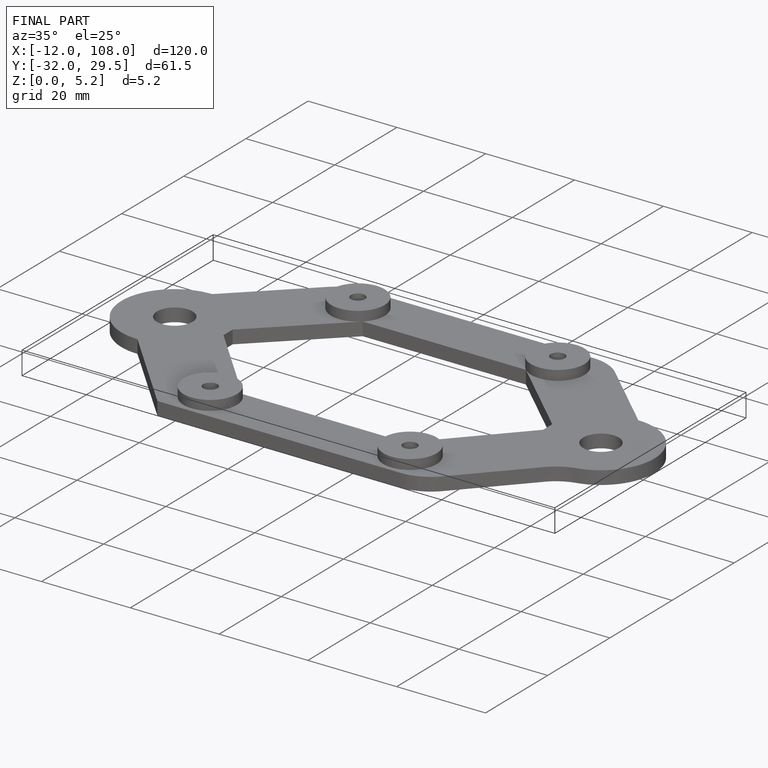
[diagram: finished part — iso view with bounding-box wireframe]
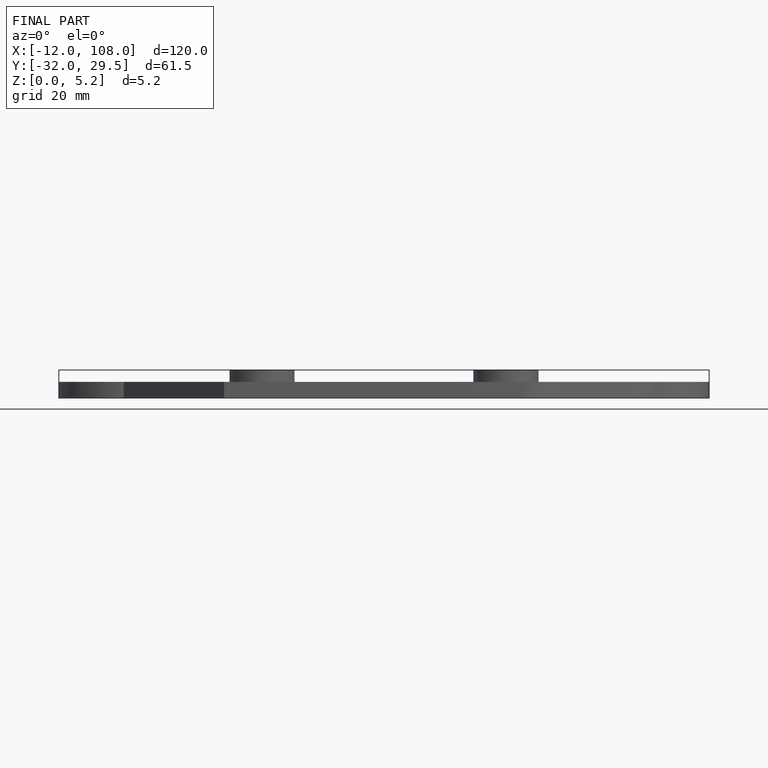
[diagram: finished part — front view with bounding-box wireframe]
